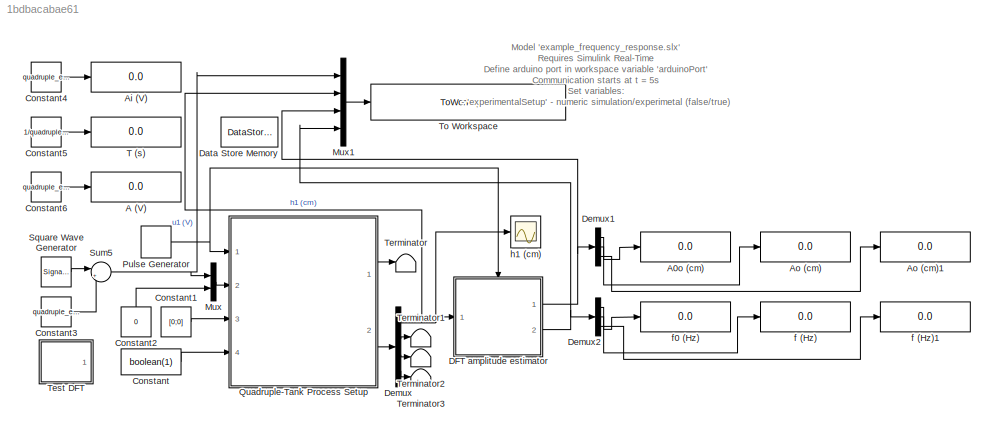
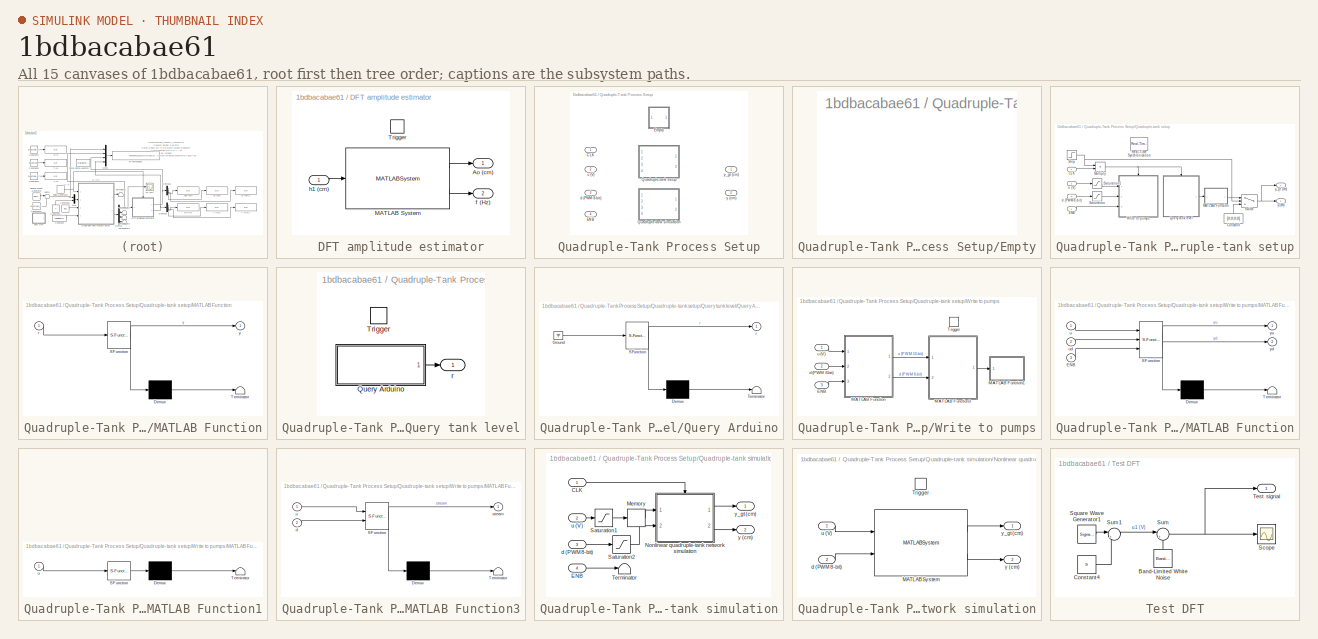
[diagram: thumbnail index - all 15 canvases of the model, root first then tree order]
MODEL slx_1bdbacabae61
KIND model
CONFIG AbsTol = auto
CONFIG EnableMultiTasking = off
CONFIG FixedStep = 0.5
CONFIG MaxStep = auto
CONFIG MinStep = auto
CONFIG RelTol = 1e-3
CONFIG SampleTimeConstraint = Unconstrained
CONFIG SolverName = FixedStepDiscrete
CONFIG StartTime = 0.0
CONFIG StopTime = min(2*3600,15/quadruple_example_frequency_response_f)
BLOCK [Display] A (V)
  Decimation = 1
  Ports = [1]
BLOCK [Display] A0o (cm)
  Decimation = 1
  Ports = [1]
BLOCK [Display] Ai (V)
  Decimation = 1
  Ports = [1]
BLOCK [Display] Ao (cm)
  Decimation = 1
  Ports = [1]
BLOCK [Display] Ao (cm)1
  Decimation = 1
  Ports = [1]
BLOCK [Constant] Constant
  Priority = 4
  Value = boolean(1)
BLOCK [Constant] Constant1
  Value = [0;0]
BLOCK [Constant] Constant2
  NameLocation = right
  Value = 0
BLOCK [Constant] Constant3
  Value = quadruple_example_frequency_response_A
BLOCK [Constant] Constant4
  Value = quadruple_example_frequency_response_Ai
BLOCK [Constant] Constant5
  Value = 1/quadruple_example_frequency_response_f
BLOCK [Constant] Constant6
  Value = quadruple_example_frequency_response_A
BLOCK [SubSystem] DFT amplitude estimator
  Ports = [1, 2, 0, 1]
  RequestExecContextInheritance = off
BLOCK [Outport] DFT amplitude estimator/Ao (cm)
  VectorParamsAs1DForOutWhenUnconnected = off
BLOCK [MATLABSystem] DFT amplitude estimator/MATLAB System
  MaskDisplay = disp('output_amplitude_dft');\nport_label('input',1,'y');\nport_label('output',1,'Ao');\nport_label('output',2,'f');
  MaskType = output_amplitude_dft
  Ports = [1, 2]
  SimulateUsing = Code generation
  System = output_amplitude_dft
BLOCK [TriggerPort] DFT amplitude estimator/Trigger
  PortDimensions = 1
  Ports = []
  StatesWhenEnabling = held
  VariantControl = Variant
BLOCK [Outport] DFT amplitude estimator/f (Hz)
  Port = 2
  VectorParamsAs1DForOutWhenUnconnected = off
BLOCK [Inport] DFT amplitude estimator/h1 (cm)
BLOCK [DataStoreMemory] Data Store Memory
  DataStoreName = f_global
  InitialValue = quadruple_example_frequency_response_f
  OutDataTypeStr = double
  ReadBeforeWriteMsg = warning
  ShowAdditionalParam = off
  SignalType = real
  WriteAfterReadMsg = warning
  WriteAfterWriteMsg = warning
BLOCK [Demux] Demux
  Ports = [1, 4]
BLOCK [Demux] Demux1
  Outputs = 3
  Ports = [1, 3]
BLOCK [Demux] Demux2
  Outputs = 3
  Ports = [1, 3]
BLOCK [Mux] Mux
  DisplayOption = bar
  Inputs = 2
  Ports = [2, 1]
BLOCK [Mux] Mux1
  DisplayOption = bar
  Ports = [4, 1]
BLOCK [DiscretePulseGenerator] Pulse Generator
  Period = 1
  Ports = [0, 1]
  PulseType = Time based
  PulseWidth = 50
BLOCK [SubSystem] Quadruple-Tank Process Setup
  InitFcn = % Load parameters\ncte = quadrupleLoadParameters();\n% Select simulation mode if unspecified\nif ~exist('experimentalSetup')\nexperimentalSetup = false;\nend\nif experimentalSetup\nif exist('arduinoPort')\nif ~isempty(instrfind)\nfclose(instrfind);\ndelete(instrfind);\nend\narduino = serial(arduinoPort,...\n                'BaudRate',9600,...\n                'ByteOrder','bigEndian',...\n                'DataBit...<+223ch>
  Ports = [4, 2]
  RequestExecContextInheritance = off
  StopFcn = if experimentalSetup\nfclose(arduino);\nend
  Variant = on
BLOCK [Inport] Quadruple-Tank Process Setup/CLK
BLOCK [Inport] Quadruple-Tank Process Setup/ENB
  Port = 4
BLOCK [SubSystem] Quadruple-Tank Process Setup/Empty
  Ports = []
  RequestExecContextInheritance = off
  VariantControl = %
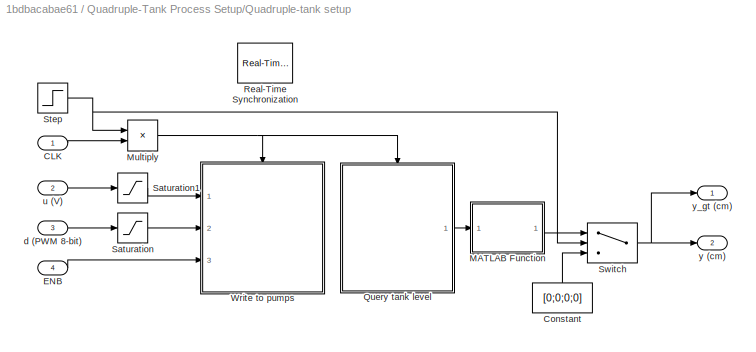
BLOCK [SubSystem] Quadruple-Tank Process Setup/Quadruple-tank setup
  Ports = [4, 2]
  RequestExecContextInheritance = off
  VariantControl = experimentalSetup == true
BLOCK [Inport] Quadruple-Tank Process Setup/Quadruple-tank setup/CLK
BLOCK [Constant] Quadruple-Tank Process Setup/Quadruple-tank setup/Constant
  NameLocation = right
  Value = [0;0;0;0]
BLOCK [Inport] Quadruple-Tank Process Setup/Quadruple-tank setup/ENB
  Port = 4
BLOCK [SubSystem] Quadruple-Tank Process Setup/Quadruple-tank setup/MATLAB Function
  ErrorFcn = Stateflow.Translate.translate
  PermitHierarchicalResolution = ExplicitOnly
  Ports = [1, 1]
  RequestExecContextInheritance = off
  SFBlockType = MATLAB Function
  TreatAsAtomicUnit = on
BLOCK [Demux] Quadruple-Tank Process Setup/Quadruple-tank setup/MATLAB Function/ Demux 
  Outputs = 1
  Ports = [1, 1]
BLOCK [S-Function] Quadruple-Tank Process Setup/Quadruple-tank setup/MATLAB Function/ SFunction 
  EnableBusSupport = on
  FunctionName = sf_sfun
  Parameters = cte
  PortCounts = [1 2]
  Ports = [1, 2]
  SFcnIsStateOwnerBlock = off
  SFunctionDeploymentMode = off
  Tag = Stateflow S-Function 4
BLOCK [Terminator] Quadruple-Tank Process Setup/Quadruple-tank setup/MATLAB Function/ Terminator 
BLOCK [Inport] Quadruple-Tank Process Setup/Quadruple-tank setup/MATLAB Function/r
BLOCK [Outport] Quadruple-Tank Process Setup/Quadruple-tank setup/MATLAB Function/y
  VectorParamsAs1DForOutWhenUnconnected = off
BLOCK [Product] Quadruple-Tank Process Setup/Quadruple-tank setup/Multiply
  Ports = [2, 1]
BLOCK [SubSystem] Quadruple-Tank Process Setup/Quadruple-tank setup/Query tank level
  Ports = [0, 1, 0, 1]
  Priority = 1
  RequestExecContextInheritance = off
BLOCK [SubSystem] Quadruple-Tank Process Setup/Quadruple-tank setup/Query tank level/Query Arduino
  ErrorFcn = Stateflow.Translate.translate
  PermitHierarchicalResolution = ExplicitOnly
  Ports = [0, 1]
  RequestExecContextInheritance = off
  SFBlockType = MATLAB Function
  TreatAsAtomicUnit = on
BLOCK [Demux] Quadruple-Tank Process Setup/Quadruple-tank setup/Query tank level/Query Arduino/ Demux 
  Outputs = 1
  Ports = [1, 1]
BLOCK [Ground] Quadruple-Tank Process Setup/Quadruple-tank setup/Query tank level/Query Arduino/ Ground 
BLOCK [S-Function] Quadruple-Tank Process Setup/Quadruple-tank setup/Query tank level/Query Arduino/ SFunction 
  EnableBusSupport = on
  FunctionName = sf_sfun
  PortCounts = [1 2]
  Ports = [1, 2]
  SFcnIsStateOwnerBlock = off
  SFunctionDeploymentMode = off
  Tag = Stateflow S-Function 2
BLOCK [Terminator] Quadruple-Tank Process Setup/Quadruple-tank setup/Query tank level/Query Arduino/ Terminator 
BLOCK [Outport] Quadruple-Tank Process Setup/Quadruple-tank setup/Query tank level/Query Arduino/r
  VectorParamsAs1DForOutWhenUnconnected = off
BLOCK [TriggerPort] Quadruple-Tank Process Setup/Quadruple-tank setup/Query tank level/Trigger
  PortDimensions = 1
  Ports = []
  StatesWhenEnabling = held
  VariantControl = Variant
BLOCK [Outport] Quadruple-Tank Process Setup/Quadruple-tank setup/Query tank level/r
  VectorParamsAs1DForOutWhenUnconnected = off
BLOCK [Reference] Quadruple-Tank Process Setup/Quadruple-tank setup/Real-Time Synchronization  REF=sldrtlib/Real-Time
Synchronization
  Ports = []
  Priority = 5
  SourceBlock = sldrtlib/Real-Time\nSynchronization
  SourceProductBaseCode = WT
  SourceType = Simulink Desktop Real-Time Synchronization
BLOCK [Saturate] Quadruple-Tank Process Setup/Quadruple-tank setup/Saturation
  LowerLimit = 0
  UpperLimit = 255
BLOCK [Saturate] Quadruple-Tank Process Setup/Quadruple-tank setup/Saturation1
  LowerLimit = cte.uMin
  UpperLimit = cte.uMax
BLOCK [Step] Quadruple-Tank Process Setup/Quadruple-tank setup/Step
  SampleTime = 0
  Time = 5
BLOCK [Switch] Quadruple-Tank Process Setup/Quadruple-tank setup/Switch
  Criteria = u2 ~= 0
  InputSameDT = off
  SaturateOnIntegerOverflow = off
BLOCK [SubSystem] Quadruple-Tank Process Setup/Quadruple-tank setup/Write to pumps
  Ports = [3, 0, 0, 1]
  Priority = 100
  RequestExecContextInheritance = off
BLOCK [Inport] Quadruple-Tank Process Setup/Quadruple-tank setup/Write to pumps/ENB
  Port = 3
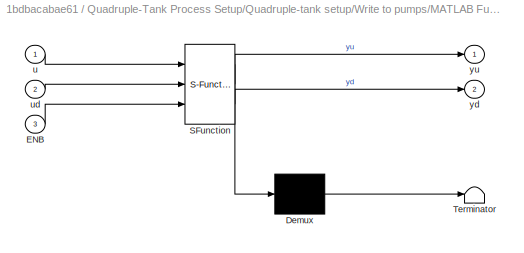
BLOCK [SubSystem] Quadruple-Tank Process Setup/Quadruple-tank setup/Write to pumps/MATLAB Function
  ErrorFcn = Stateflow.Translate.translate
  PermitHierarchicalResolution = ExplicitOnly
  Ports = [3, 2]
  RequestExecContextInheritance = off
  SFBlockType = MATLAB Function
  TreatAsAtomicUnit = on
BLOCK [Demux] Quadruple-Tank Process Setup/Quadruple-tank setup/Write to pumps/MATLAB Function/ Demux 
  Outputs = 1
  Ports = [1, 1]
BLOCK [S-Function] Quadruple-Tank Process Setup/Quadruple-tank setup/Write to pumps/MATLAB Function/ SFunction 
  EnableBusSupport = on
  FunctionName = sf_sfun
  Parameters = cte
  PortCounts = [3 3]
  Ports = [3, 3]
  SFcnIsStateOwnerBlock = off
  SFunctionDeploymentMode = off
  Tag = Stateflow S-Function 3
BLOCK [Terminator] Quadruple-Tank Process Setup/Quadruple-tank setup/Write to pumps/MATLAB Function/ Terminator 
BLOCK [Inport] Quadruple-Tank Process Setup/Quadruple-tank setup/Write to pumps/MATLAB Function/ENB
  Port = 3
BLOCK [Inport] Quadruple-Tank Process Setup/Quadruple-tank setup/Write to pumps/MATLAB Function/u
BLOCK [Inport] Quadruple-Tank Process Setup/Quadruple-tank setup/Write to pumps/MATLAB Function/ud
  Port = 2
BLOCK [Outport] Quadruple-Tank Process Setup/Quadruple-tank setup/Write to pumps/MATLAB Function/yd
  Port = 2
  VectorParamsAs1DForOutWhenUnconnected = off
BLOCK [Outport] Quadruple-Tank Process Setup/Quadruple-tank setup/Write to pumps/MATLAB Function/yu
  VectorParamsAs1DForOutWhenUnconnected = off
BLOCK [SubSystem] Quadruple-Tank Process Setup/Quadruple-tank setup/Write to pumps/MATLAB Function1
  ErrorFcn = Stateflow.Translate.translate
  PermitHierarchicalResolution = ExplicitOnly
  Ports = [1]
  RequestExecContextInheritance = off
  SFBlockType = MATLAB Function
  TreatAsAtomicUnit = on
BLOCK [Demux] Quadruple-Tank Process Setup/Quadruple-tank setup/Write to pumps/MATLAB Function1/ Demux 
  Outputs = 1
  Ports = [1, 1]
BLOCK [S-Function] Quadruple-Tank Process Setup/Quadruple-tank setup/Write to pumps/MATLAB Function1/ SFunction 
  EnableBusSupport = on
  FunctionName = sf_sfun
  PortCounts = [1 1]
  Ports = [1, 1]
  SFcnIsStateOwnerBlock = off
  SFunctionDeploymentMode = off
  Tag = Stateflow S-Function 1
BLOCK [Terminator] Quadruple-Tank Process Setup/Quadruple-tank setup/Write to pumps/MATLAB Function1/ Terminator 
BLOCK [Inport] Quadruple-Tank Process Setup/Quadruple-tank setup/Write to pumps/MATLAB Function1/u
BLOCK [SubSystem] Quadruple-Tank Process Setup/Quadruple-tank setup/Write to pumps/MATLAB Function3
  ErrorFcn = Stateflow.Translate.translate
  PermitHierarchicalResolution = ExplicitOnly
  Ports = [2, 1]
  RequestExecContextInheritance = off
  SFBlockType = MATLAB Function
  TreatAsAtomicUnit = on
BLOCK [Demux] Quadruple-Tank Process Setup/Quadruple-tank setup/Write to pumps/MATLAB Function3/ Demux 
  Outputs = 1
  Ports = [1, 1]
BLOCK [S-Function] Quadruple-Tank Process Setup/Quadruple-tank setup/Write to pumps/MATLAB Function3/ SFunction 
  EnableBusSupport = on
  FunctionName = sf_sfun
  PortCounts = [2 2]
  Ports = [2, 2]
  SFcnIsStateOwnerBlock = off
  SFunctionDeploymentMode = off
  Tag = Stateflow S-Function 5
BLOCK [Terminator] Quadruple-Tank Process Setup/Quadruple-tank setup/Write to pumps/MATLAB Function3/ Terminator 
BLOCK [Inport] Quadruple-Tank Process Setup/Quadruple-tank setup/Write to pumps/MATLAB Function3/d
  Port = 2
BLOCK [Outport] Quadruple-Tank Process Setup/Quadruple-tank setup/Write to pumps/MATLAB Function3/stream
  VectorParamsAs1DForOutWhenUnconnected = off
BLOCK [Inport] Quadruple-Tank Process Setup/Quadruple-tank setup/Write to pumps/MATLAB Function3/u
BLOCK [TriggerPort] Quadruple-Tank Process Setup/Quadruple-tank setup/Write to pumps/Trigger
  PortDimensions = 1
  Ports = []
  StatesWhenEnabling = held
  VariantControl = Variant
BLOCK [Inport] Quadruple-Tank Process Setup/Quadruple-tank setup/Write to pumps/d (PWM 8-bit)
  Port = 2
BLOCK [Inport] Quadruple-Tank Process Setup/Quadruple-tank setup/Write to pumps/u (V)
BLOCK [Inport] Quadruple-Tank Process Setup/Quadruple-tank setup/d (PWM 8-bit)
  Port = 3
BLOCK [Inport] Quadruple-Tank Process Setup/Quadruple-tank setup/u (V)
  Port = 2
BLOCK [Outport] Quadruple-Tank Process Setup/Quadruple-tank setup/y (cm)
  Port = 2
  SignalType = real
  VarSizeSig = No
  VectorParamsAs1DForOutWhenUnconnected = off
BLOCK [Outport] Quadruple-Tank Process Setup/Quadruple-tank setup/y_gt (cm)
  SignalType = real
  VarSizeSig = No
  VectorParamsAs1DForOutWhenUnconnected = off
BLOCK [SubSystem] Quadruple-Tank Process Setup/Quadruple-tank simulation
  Ports = [4, 2]
  Priority = 4
  RequestExecContextInheritance = off
  VariantControl = experimentalSetup == false
BLOCK [Inport] Quadruple-Tank Process Setup/Quadruple-tank simulation/CLK
BLOCK [Inport] Quadruple-Tank Process Setup/Quadruple-tank simulation/ENB
  Port = 4
BLOCK [Memory] Quadruple-Tank Process Setup/Quadruple-tank simulation/Memory
BLOCK [SubSystem] Quadruple-Tank Process Setup/Quadruple-tank simulation/Nonlinear quadruple-tank network simulation
  Ports = [2, 2, 0, 1]
  Priority = 10
  RequestExecContextInheritance = off
BLOCK [MATLABSystem] Quadruple-Tank Process Setup/Quadruple-tank simulation/Nonlinear quadruple-tank network simulation/MATLAB System
  MaskDisplay = disp('quadrupleSimObj');\nport_label('input',1,'u');\nport_label('input',2,'d');\nport_label('output',1,'y_gt');\nport_label('output',2,'y');
  MaskType = quadrupleSimObj
  Ports = [2, 2]
  SimulateUsing = Interpreted execution
  System = quadrupleSimObj
BLOCK [TriggerPort] Quadruple-Tank Process Setup/Quadruple-tank simulation/Nonlinear quadruple-tank network simulation/Trigger
  PortDimensions = 1
  Ports = []
  StatesWhenEnabling = held
  VariantControl = Variant
BLOCK [Inport] Quadruple-Tank Process Setup/Quadruple-tank simulation/Nonlinear quadruple-tank network simulation/d (PWM 8-bit)
  Port = 2
BLOCK [Inport] Quadruple-Tank Process Setup/Quadruple-tank simulation/Nonlinear quadruple-tank network simulation/u (V)
BLOCK [Outport] Quadruple-Tank Process Setup/Quadruple-tank simulation/Nonlinear quadruple-tank network simulation/y (cm)
  Port = 2
  VectorParamsAs1DForOutWhenUnconnected = off
BLOCK [Outport] Quadruple-Tank Process Setup/Quadruple-tank simulation/Nonlinear quadruple-tank network simulation/y_gt (cm)
  VectorParamsAs1DForOutWhenUnconnected = off
BLOCK [Saturate] Quadruple-Tank Process Setup/Quadruple-tank simulation/Saturation1
  LowerLimit = cte.uMin
  UpperLimit = cte.uMax
BLOCK [Saturate] Quadruple-Tank Process Setup/Quadruple-tank simulation/Saturation2
  LowerLimit = 0
  UpperLimit = 2^8-1
BLOCK [Terminator] Quadruple-Tank Process Setup/Quadruple-tank simulation/Terminator
BLOCK [Inport] Quadruple-Tank Process Setup/Quadruple-tank simulation/d (PWM 8-bit)
  Port = 3
BLOCK [Inport] Quadruple-Tank Process Setup/Quadruple-tank simulation/u (V)
  Port = 2
BLOCK [Outport] Quadruple-Tank Process Setup/Quadruple-tank simulation/y (cm)
  Port = 2
  VectorParamsAs1DForOutWhenUnconnected = off
BLOCK [Outport] Quadruple-Tank Process Setup/Quadruple-tank simulation/y_gt (cm)
  VectorParamsAs1DForOutWhenUnconnected = off
BLOCK [Inport] Quadruple-Tank Process Setup/d (PWM 8-bit)
  Port = 3
BLOCK [Inport] Quadruple-Tank Process Setup/u (V)
  Port = 2
BLOCK [Outport] Quadruple-Tank Process Setup/y (cm)
  Port = 2
  VectorParamsAs1DForOutWhenUnconnected = off
BLOCK [Outport] Quadruple-Tank Process Setup/y_gt (cm)
  VectorParamsAs1DForOutWhenUnconnected = off
BLOCK [SignalGenerator] Square Wave Generator
  Amplitude = quadruple_example_frequency_response_Ai
  Frequency = quadruple_example_frequency_response_f
  Ports = [0, 1]
BLOCK [Sum] Sum5
  Inputs = |++
  Ports = [2, 1]
BLOCK [Display] T (s)
  Decimation = 1
  Ports = [1]
BLOCK [Terminator] Terminator
BLOCK [Terminator] Terminator1
BLOCK [Terminator] Terminator2
BLOCK [Terminator] Terminator3
BLOCK [SubSystem] Test DFT
  Commented = on
  Ports = [0, 1]
  RequestExecContextInheritance = off
BLOCK [Reference] Test DFT/Band-Limited White Noise  REF=simulink/Sources/Band-Limited
White Noise
  NameLocation = right
  Ports = [0, 1]
  SourceBlock = simulink/Sources/Band-Limited\nWhite Noise
  SourceProductBaseCode = SL
  SourceType = Band-Limited White Noise.
BLOCK [Constant] Test DFT/Constant4
  Value = 9
BLOCK [Scope] Test DFT/Scope
  Floating = off
  NumInputPorts = 1
  Ports = [1]
  ScopeSpecificationString = Simulink.scopes.TimeScopeBlockCfg('CurrentConfiguration', extmgr.ConfigurationSet(extmgr.Configuration('Core','General UI',true),extmgr.Configuration('Core','Source UI',true),extmgr.Configuration('Sources','WiredSimulink',true,'DataLoggingVariableName','ScopeData1'),extmgr.Configuration('Visuals','Time Domain',true,'SerializedDisplays',{struct('MinYLimReal','7.67424','MaxYLimReal','10.31787','YLab...<+1390ch>
BLOCK [SignalGenerator] Test DFT/Square Wave Generator1
  Amplitude = quadruple_example_frequency_response_Ai
  Frequency = quadruple_example_frequency_response_f
  Ports = [0, 1]
BLOCK [Sum] Test DFT/Sum
  Inputs = |++
  Ports = [2, 1]
BLOCK [Sum] Test DFT/Sum1
  Inputs = |++
  Ports = [2, 1]
BLOCK [Outport] Test DFT/Test signal
  VectorParamsAs1DForOutWhenUnconnected = off
BLOCK [ToWorkspace] To Workspace
  FixptAsFi = on
  MaxDataPoints = inf
  Ports = [1]
  SampleTime = 1
  SaveFormat = Timeseries
  VariableName = quadruple_example_frequency_response_data
BLOCK [Display] f (Hz)
  Decimation = 1
  Ports = [1]
BLOCK [Display] f (Hz)1
  Decimation = 1
  Ports = [1]
BLOCK [Display] f0 (Hz)
  Decimation = 1
  Ports = [1]
BLOCK [Scope] h1 (cm)
  Floating = off
  NumInputPorts = 1
  Ports = [1]
  ScopeSpecificationString = Simulink.scopes.TimeScopeBlockCfg('CurrentConfiguration', extmgr.ConfigurationSet(extmgr.Configuration('Core','General UI',true),extmgr.Configuration('Core','Source UI',true),extmgr.Configuration('Sources','WiredSimulink',true,'DataLoggingVariableName','ScopeData1'),extmgr.Configuration('Visuals','Time Domain',true,'SerializedDisplays',{struct('MinYLimReal','-1.7742','MaxYLimReal','15.96784','YLab...<+1439ch>
ANNOTATION (root): Model 'example_frequency_response.slx ' Requires Simulink Real-Time Define arduino port in workspace variable 'arduinoPort' Communication starts at t = 5s Set variables: - ' experimentalSetup' - numeric simulation/experimetal (false/true) - ' quadruple_example_frequency_response_A' - DC component of input sinusoid (V) - ' quadruple_example_frequency_response_Ai' - amplitude of the input sinusoid (...<+443ch>
LINE Constant1:1 -> Quadruple-Tank Process Setup:3
LINE Constant2:1 -> Mux:2
LINE Constant3:1 -> Sum5:2
LINE Constant4:1 -> Ai (V):1
LINE Constant5:1 -> T (s):1
LINE Constant6:1 -> A (V):1
LINE Constant:1 -> Quadruple-Tank Process Setup:4
LINE DFT amplitude estimator/MATLAB System:1 -> DFT amplitude estimator/Ao (cm):1
LINE DFT amplitude estimator/MATLAB System:2 -> DFT amplitude estimator/f (Hz):1
LINE DFT amplitude estimator/h1 (cm):1 -> DFT amplitude estimator/MATLAB System:1
NET DFT amplitude estimator:1 -> Demux1:1, Mux1:3
NET DFT amplitude estimator:2 -> Demux2:1, Mux1:4
LINE Demux1:1 -> A0o (cm):1
LINE Demux1:2 -> Ao (cm):1
LINE Demux1:3 -> Ao (cm)1:1
LINE Demux2:1 -> f0 (Hz):1
LINE Demux2:2 -> f (Hz):1
LINE Demux2:3 -> f (Hz)1:1
NET Demux:1 -> DFT amplitude estimator:1, Mux1:2, h1 (cm):1
LINE Demux:2 -> Terminator1:1
LINE Demux:3 -> Terminator2:1
LINE Demux:4 -> Terminator3:1
LINE Mux1:1 -> To Workspace:1
LINE Mux:1 -> Quadruple-Tank Process Setup:2
NET Pulse Generator:1 -> DFT amplitude estimator:trigger, Quadruple-Tank Process Setup:1
LINE Quadruple-Tank Process Setup/Quadruple-tank setup/CLK:1 -> Quadruple-Tank Process Setup/Quadruple-tank setup/Multiply:2
LINE Quadruple-Tank Process Setup/Quadruple-tank setup/Constant:1 -> Quadruple-Tank Process Setup/Quadruple-tank setup/Switch:3
LINE Quadruple-Tank Process Setup/Quadruple-tank setup/ENB:1 -> Quadruple-Tank Process Setup/Quadruple-tank setup/Write to pumps:3
LINE Quadruple-Tank Process Setup/Quadruple-tank setup/MATLAB Function:1 -> Quadruple-Tank Process Setup/Quadruple-tank setup/Switch:1
NET Quadruple-Tank Process Setup/Quadruple-tank setup/Multiply:1 -> Quadruple-Tank Process Setup/Quadruple-tank setup/Query tank level:trigger, Quadruple-Tank Process Setup/Quadruple-tank setup/Write to pumps:trigger
LINE Quadruple-Tank Process Setup/Quadruple-tank setup/Query tank level/Query Arduino:1 -> Quadruple-Tank Process Setup/Quadruple-tank setup/Query tank level/r:1
LINE Quadruple-Tank Process Setup/Quadruple-tank setup/Query tank level:1 -> Quadruple-Tank Process Setup/Quadruple-tank setup/MATLAB Function:1
LINE Quadruple-Tank Process Setup/Quadruple-tank setup/Saturation1:1 -> Quadruple-Tank Process Setup/Quadruple-tank setup/Write to pumps:1
LINE Quadruple-Tank Process Setup/Quadruple-tank setup/Saturation:1 -> Quadruple-Tank Process Setup/Quadruple-tank setup/Write to pumps:2
NET Quadruple-Tank Process Setup/Quadruple-tank setup/Step:1 -> Quadruple-Tank Process Setup/Quadruple-tank setup/Multiply:1, Quadruple-Tank Process Setup/Quadruple-tank setup/Switch:2
NET Quadruple-Tank Process Setup/Quadruple-tank setup/Switch:1 -> Quadruple-Tank Process Setup/Quadruple-tank setup/y (cm):1, Quadruple-Tank Process Setup/Quadruple-tank setup/y_gt (cm):1
LINE Quadruple-Tank Process Setup/Quadruple-tank setup/Write to pumps/ENB:1 -> Quadruple-Tank Process Setup/Quadruple-tank setup/Write to pumps/MATLAB Function:3
LINE Quadruple-Tank Process Setup/Quadruple-tank setup/Write to pumps/MATLAB Function3:1 -> Quadruple-Tank Process Setup/Quadruple-tank setup/Write to pumps/MATLAB Function1:1
LINE Quadruple-Tank Process Setup/Quadruple-tank setup/Write to pumps/MATLAB Function:1 -> Quadruple-Tank Process Setup/Quadruple-tank setup/Write to pumps/MATLAB Function3:1
LINE Quadruple-Tank Process Setup/Quadruple-tank setup/Write to pumps/MATLAB Function:2 -> Quadruple-Tank Process Setup/Quadruple-tank setup/Write to pumps/MATLAB Function3:2
LINE Quadruple-Tank Process Setup/Quadruple-tank setup/Write to pumps/d (PWM 8-bit):1 -> Quadruple-Tank Process Setup/Quadruple-tank setup/Write to pumps/MATLAB Function:2
LINE Quadruple-Tank Process Setup/Quadruple-tank setup/Write to pumps/u (V):1 -> Quadruple-Tank Process Setup/Quadruple-tank setup/Write to pumps/MATLAB Function:1
LINE Quadruple-Tank Process Setup/Quadruple-tank setup/d (PWM 8-bit):1 -> Quadruple-Tank Process Setup/Quadruple-tank setup/Saturation:1
LINE Quadruple-Tank Process Setup/Quadruple-tank setup/u (V):1 -> Quadruple-Tank Process Setup/Quadruple-tank setup/Saturation1:1
LINE Quadruple-Tank Process Setup/Quadruple-tank simulation/CLK:1 -> Quadruple-Tank Process Setup/Quadruple-tank simulation/Nonlinear quadruple-tank network simulation:trigger
LINE Quadruple-Tank Process Setup/Quadruple-tank simulation/ENB:1 -> Quadruple-Tank Process Setup/Quadruple-tank simulation/Terminator:1
LINE Quadruple-Tank Process Setup/Quadruple-tank simulation/Memory:1 -> Quadruple-Tank Process Setup/Quadruple-tank simulation/Nonlinear quadruple-tank network simulation:1
LINE Quadruple-Tank Process Setup/Quadruple-tank simulation/Nonlinear quadruple-tank network simulation/MATLAB System:1 -> Quadruple-Tank Process Setup/Quadruple-tank simulation/Nonlinear quadruple-tank network simulation/y_gt (cm):1
LINE Quadruple-Tank Process Setup/Quadruple-tank simulation/Nonlinear quadruple-tank network simulation/MATLAB System:2 -> Quadruple-Tank Process Setup/Quadruple-tank simulation/Nonlinear quadruple-tank network simulation/y (cm):1
LINE Quadruple-Tank Process Setup/Quadruple-tank simulation/Nonlinear quadruple-tank network simulation/d (PWM 8-bit):1 -> Quadruple-Tank Process Setup/Quadruple-tank simulation/Nonlinear quadruple-tank network simulation/MATLAB System:2
LINE Quadruple-Tank Process Setup/Quadruple-tank simulation/Nonlinear quadruple-tank network simulation/u (V):1 -> Quadruple-Tank Process Setup/Quadruple-tank simulation/Nonlinear quadruple-tank network simulation/MATLAB System:1
LINE Quadruple-Tank Process Setup/Quadruple-tank simulation/Nonlinear quadruple-tank network simulation:1 -> Quadruple-Tank Process Setup/Quadruple-tank simulation/y_gt (cm):1
LINE Quadruple-Tank Process Setup/Quadruple-tank simulation/Nonlinear quadruple-tank network simulation:2 -> Quadruple-Tank Process Setup/Quadruple-tank simulation/y (cm):1
LINE Quadruple-Tank Process Setup/Quadruple-tank simulation/Saturation1:1 -> Quadruple-Tank Process Setup/Quadruple-tank simulation/Memory:1
LINE Quadruple-Tank Process Setup/Quadruple-tank simulation/Saturation2:1 -> Quadruple-Tank Process Setup/Quadruple-tank simulation/Nonlinear quadruple-tank network simulation:2
LINE Quadruple-Tank Process Setup/Quadruple-tank simulation/d (PWM 8-bit):1 -> Quadruple-Tank Process Setup/Quadruple-tank simulation/Saturation2:1
LINE Quadruple-Tank Process Setup/Quadruple-tank simulation/u (V):1 -> Quadruple-Tank Process Setup/Quadruple-tank simulation/Saturation1:1
LINE Quadruple-Tank Process Setup:1 -> Terminator:1
LINE Quadruple-Tank Process Setup:2 -> Demux:1
LINE Square Wave Generator:1 -> Sum5:1
NET Sum5:1 -> Mux1:1, Mux:1
LINE Test DFT/Band-Limited White Noise:1 -> Test DFT/Sum:2
LINE Test DFT/Constant4:1 -> Test DFT/Sum1:2
LINE Test DFT/Square Wave Generator1:1 -> Test DFT/Sum1:1
LINE Test DFT/Sum1:1 -> Test DFT/Sum:1
NET Test DFT/Sum:1 -> Test DFT/Scope:1, Test DFT/Test signal:1
note: NET lines group one-source signal fan-out (src -> all destinations, sorted); 1:1 wires keep LINE
CHART Quadruple-Tank Process Setup/Quadruple-tank setup/Write to pumps/MATLAB Function1 states=1 transitions=1
  STATE_LABEL 'eML_blk_kernel()'
  STATE_LABEL 'SCRIPT:\nfunction toArduino(u)\n% Find arduino serial object\ncoder.extrinsic(\'instrfind\'); \npersistent arduino;\nif isempty(arduino)\n    arduino = instrfind(\'Status\',\'open\',\'Baud\',9600);\nend\n% Send metadata\nfprintf(arduino, "#16");\n% Send actuation inputs\nfwrite(arduino,u,\'uint16\');\nend\n'
CHART Quadruple-Tank Process Setup/Quadruple-tank setup/Query tank level/Query Arduino states=1 transitions=1
  STATE_LABEL 'eML_blk_kernel()'
  STATE_LABEL "SCRIPT:\nfunction r = queryArduino()\n% Find arduino serial object\ncoder.extrinsic('instrfind'); \npersistent arduino;\nif isempty(arduino)\n    arduino = instrfind('Status','open','Baud',9600);\nend\n\n% Query arduino\nfprintf(arduino, '$');\n% Ignore metadata\nfread(arduino,[4 1],'uint8');\n% Read water-level data\naux = fread(arduino,[5 1],'uint16');\nu = zeros(5,1);\nu(5) = double(aux(5,1));\nfor i = 1:4\n    ...<+74ch>"
CHART Quadruple-Tank Process Setup/Quadruple-tank setup/Write to pumps/MATLAB Function states=1 transitions=1
  STATE_LABEL 'eML_blk_kernel()'
  STATE_LABEL 'SCRIPT:\nfunction [yu,yd] = pwm_u(u,ud,ENB,cte)\n% In u in volts\nif ENB\n    for i = 1:2\n        u(i) = 1023*(cte.c(1,i)*cte.c(3,i)-cte.c(2,i)*cte.k(i)*u(i))/(cte.c(1,i)-cte.k(i)*u(i));\n    end\n    yu = u;\n    yd = ud;\nelse\n    yu = zeros(2,1);\n    yd = zeros(2,1);\nend\n\n\n\n'
CHART Quadruple-Tank Process Setup/Quadruple-tank setup/MATLAB Function states=1 transitions=1
  STATE_LABEL 'eML_blk_kernel()'
  STATE_LABEL 'SCRIPT:\nfunction y = water_level(r,cte)\ny = zeros(4,1);\nfor i = 1:4\n   y(i) = r(i)*cte.dh_dr(i)+cte.h0(i);\nend'
CHART Quadruple-Tank Process Setup/Quadruple-tank setup/Write to pumps/MATLAB Function3 states=1 transitions=1
  STATE_LABEL 'eML_blk_kernel()'
  STATE_LABEL 'SCRIPT:\nfunction stream = packPWM10bit(u,d)\n    %% Saturation \n    u(u<0) = 0;\n    u(u>2^10-1) =2^10-1;\n    d(d<0) = 0;\n    d(d>2^8-1) =2^8-1;\n    %% Pack PWM \n    stream = uint16(zeros(3,1));\n    % First two actuation pump signals of 10 bits are sent individually\n    stream(1:2) = uint16(round(u)); \n    % Two disturbance pump signals of 8 bits are sent together as a 16 bit\n    % uint16_t\n    stre...<+53ch>'
CHART  states=0 transitions=0
CHART  states=0 transitions=0
CHART  states=0 transitions=0
CHART  states=0 transitions=0
CHART  states=0 transitions=0
